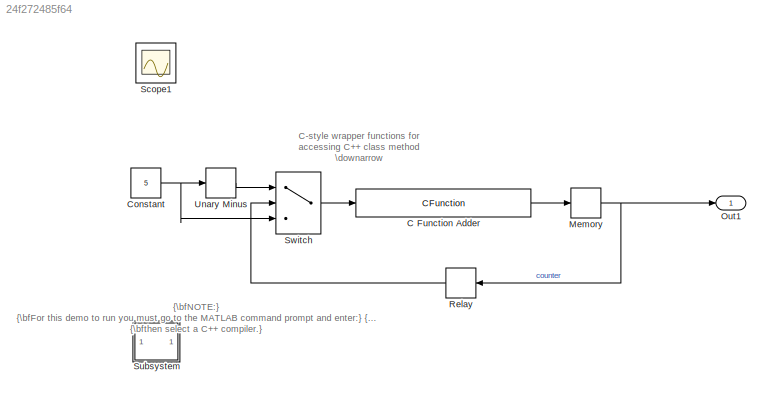
MODEL slx_24f272485f64
KIND model
CONFIG AbsTol = auto
CONFIG EnableMultiTasking = on
CONFIG FixedStep = 0.1
CONFIG MaxStep = auto
CONFIG MinStep = auto
CONFIG RelTol = 1e-3
CONFIG SampleTimeConstraint = Unconstrained
CONFIG SolverName = FixedStepDiscrete
CONFIG StartTime = 0.0
CONFIG StopTime = 10
BLOCK [CFunction] C Function Adder
  OutputCode = output = adderOutput(myAdder, increment);
  Ports = [1, 1]
  StartCode = myAdder = createAdder();
  TerminateCode = deleteAdder(myAdder);
BLOCK [Constant] Constant
  OutDataTypeStr = int32
  Value = 5
BLOCK [Memory] Memory
  InheritSampleTime = on
  StateName = memCounter
BLOCK [Outport] Out1
  VectorParamsAs1DForOutWhenUnconnected = off
BLOCK [Relay] Relay
  OffSwitchValue = -1
  OnSwitchValue = 101
BLOCK [Scope] Scope1
  Floating = off
  IOType = viewer
  NumInputPorts = 1
  Ports = []
  ScopeSpecificationString = Simulink.scopes.TimeScopeBlockCfg('CurrentConfiguration', extmgr.ConfigurationSet(extmgr.Configuration('Core','General UI',true),extmgr.Configuration('Core','Source UI',true),extmgr.Configuration('Sources','WiredSimulink',true,'DataLoggingMaxPoints','7500','DataLoggingLimitDataPoints',true,'DataLoggingSaveFormat','Array','DataLoggingDecimation','1','DataLoggingDecimateData',true),extmgr.Configurat...<+1647ch>
BLOCK [SubSystem] Subsystem
  Ports = []
  RequestExecContextInheritance = off
BLOCK [Switch] Switch
  Criteria = u2 > Threshold
  InputSameDT = off
  SaturateOnIntegerOverflow = off
  ZeroCross = off
BLOCK [UnaryMinus] Unary Minus
ANNOTATION (root): C-style wrapper functions for accessing C++ class method \downarrow
ANNOTATION (root): {\bfNOTE:} {\bfFor this demo to run you must go to the MATLAB command prompt and enter:} {\it>> mex -setup} {\bfthen select a C++ compiler.}
LINE C Function Adder:1 -> Memory:1
NET Constant:1 -> Switch:3, Unary Minus:1
NET Memory:1 -> Out1:1, Relay:1
LINE Relay:1 -> Switch:2
LINE Switch:1 -> C Function Adder:1
LINE Unary Minus:1 -> Switch:1
note: NET lines group one-source signal fan-out (src -> all destinations, sorted); 1:1 wires keep LINE
